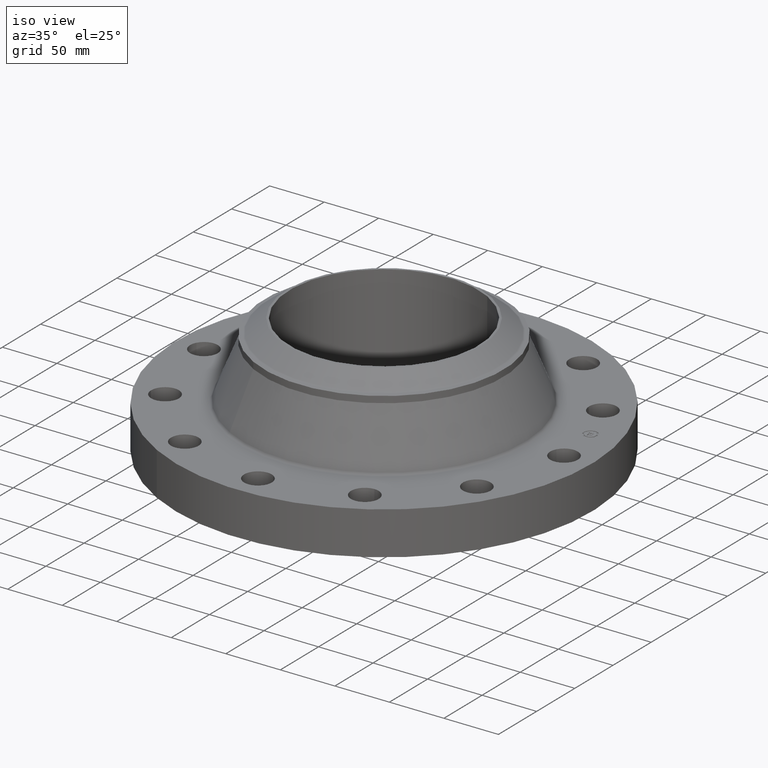
[diagram: clean part render]
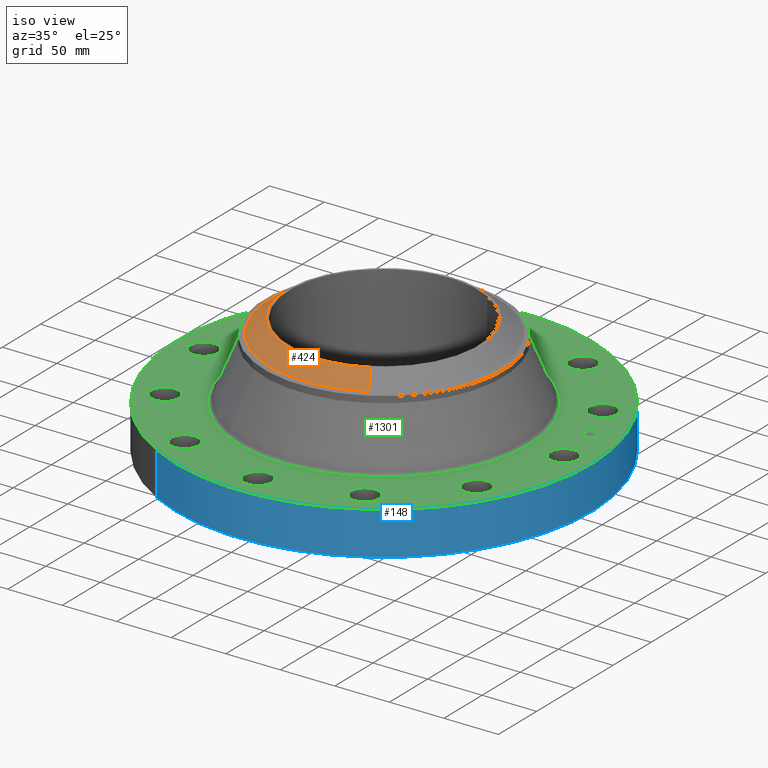
[diagram: same view with three faces highlighted in distinct colors, each labeled with its STEP entity id]
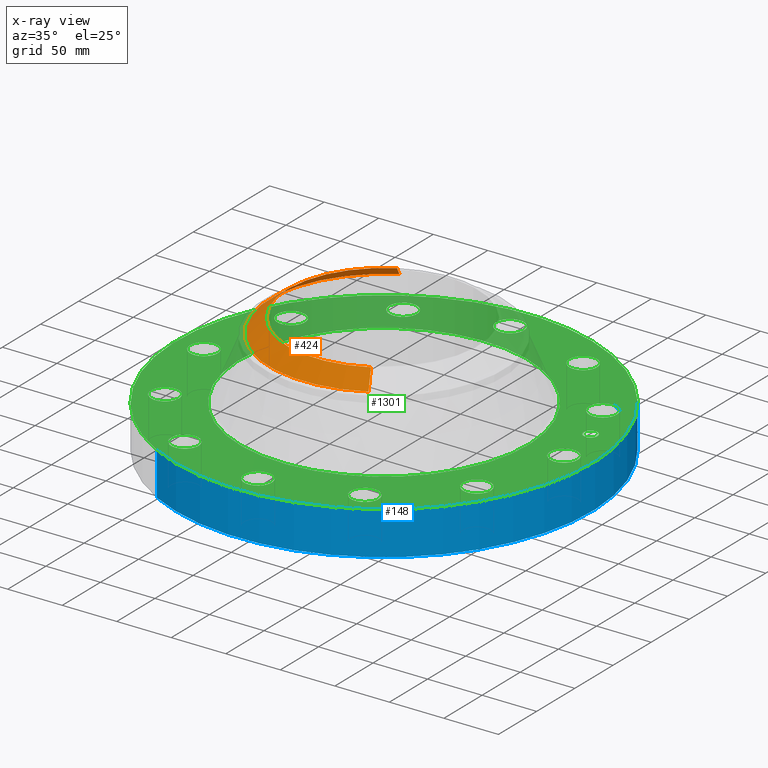
[diagram: x-ray of the same camera — body ghosted, the three highlighted faces saturated]
A machine part, iso view with three faces highlighted in distinct colors.
The next image is the same camera in x-ray (body ghosted, the three faces saturated) — at least one of them is partly hidden behind the body in this view.
Their STEP definitions:

[orange] entity #424 — the highlighted conical surface has half-angle 52.5 deg.
#343=AXIS2_PLACEMENT_3D('Cone Axis2P3D',#340,#341,#342) ;
#387=AXIS2_PLACEMENT_3D('Circle Axis2P3D',#385,#386,$) ;
#415=AXIS2_PLACEMENT_3D('Circle Axis2P3D',#413,#414,$) ;
#340=CARTESIAN_POINT('Axis2P3D Location',(0.,0.,4.32000000002)) ;
#349=CARTESIAN_POINT('Vertex',(1.67091313967,-3.05858598622,4.32000000002)) ;
#351=CARTESIAN_POINT('Vertex',(-1.67091313967,3.05858598622,4.32000000002)) ;
#354=CARTESIAN_POINT('Line Origine',(1.82585444222,-3.34220413812,4.07201437258)) ;
#358=CARTESIAN_POINT('Vertex',(1.98079574477,-3.62582229002,3.82402874515)) ;
#365=CARTESIAN_POINT('Vertex',(-1.98079574477,3.62582229002,3.82402874515)) ;
#368=CARTESIAN_POINT('Line Origine',(-1.82585444222,3.34220413812,4.07201437258)) ;
#385=CARTESIAN_POINT('Axis2P3D Location',(0.,0.,4.32000000002)) ;
#413=CARTESIAN_POINT('Axis2P3D Location',(0.,0.,3.82402874515)) ;
#341=DIRECTION('Axis2P3D Direction',(-0.,-0.,-0.0393700787402)) ;
#342=DIRECTION('Axis2P3D XDirection',(0.0188750212049,-0.0345504945626,0.)) ;
#355=DIRECTION('Vector Direction',(0.014974561121,-0.02741075027,-0.023966985394)) ;
#369=DIRECTION('Vector Direction',(-0.014974561121,0.02741075027,-0.023966985394)) ;
#386=DIRECTION('Axis2P3D Direction',(0.,0.,-0.0393700787402)) ;
#414=DIRECTION('Axis2P3D Direction',(0.,0.,-0.0393700787402)) ;
#356=VECTOR('Line Direction',#355,0.0393700787402) ;
#370=VECTOR('Line Direction',#369,0.0393700787402) ;
#419=ORIENTED_EDGE('',*,*,#389,.F.) ;
#420=ORIENTED_EDGE('',*,*,#372,.T.) ;
#421=ORIENTED_EDGE('',*,*,#417,.T.) ;
#422=ORIENTED_EDGE('',*,*,#360,.F.) ;
#424=ADVANCED_FACE('PartBody',(#423),#344,.T.) ;
#388=CIRCLE('generated circle',#387,3.48524015749) ;
#416=CIRCLE('generated circle',#415,4.13160248104) ;
#344=CONICAL_SURFACE('Cone',#343,3.48524015749,0.916297857297) ;
#360=EDGE_CURVE('',#350,#359,#357,.T.) ;
#372=EDGE_CURVE('',#352,#366,#371,.T.) ;
#389=EDGE_CURVE('',#352,#350,#388,.F.) ;
#417=EDGE_CURVE('',#366,#359,#416,.F.) ;
#418=EDGE_LOOP('',(#419,#420,#421,#422)) ;
#423=FACE_OUTER_BOUND('',#418,.T.) ;
#357=LINE('Line',#354,#356) ;
#371=LINE('Line',#368,#370) ;
#350=VERTEX_POINT('',#349) ;
#352=VERTEX_POINT('',#351) ;
#359=VERTEX_POINT('',#358) ;
#366=VERTEX_POINT('',#365) ;

[blue] entity #148 — the highlighted cylindrical surface (partial cylindrical patch) has radius 190.5 mm, axis along (0, 0, -1).
#95=AXIS2_PLACEMENT_3D('Cylinder Axis2P3D',#92,#93,#94) ;
#134=AXIS2_PLACEMENT_3D('Circle Axis2P3D',#132,#133,$) ;
#139=AXIS2_PLACEMENT_3D('Circle Axis2P3D',#137,#138,$) ;
#92=CARTESIAN_POINT('Axis2P3D Location',(0.,0.,2.16000000001)) ;
#101=CARTESIAN_POINT('Vertex',(-3.59569153955,-6.5818692142,8.39223703654E-016)) ;
#103=CARTESIAN_POINT('Vertex',(3.59569153955,6.5818692142,8.39223703654E-016)) ;
#106=CARTESIAN_POINT('Line Origine',(-3.59569153955,-6.5818692142,0.780000000003)) ;
#110=CARTESIAN_POINT('Vertex',(-3.59569153955,-6.5818692142,1.56000000001)) ;
#117=CARTESIAN_POINT('Vertex',(3.59569153955,6.5818692142,1.56000000001)) ;
#120=CARTESIAN_POINT('Line Origine',(3.59569153955,6.5818692142,0.780000000003)) ;
#132=CARTESIAN_POINT('Axis2P3D Location',(0.,0.,8.39223703654E-016)) ;
#137=CARTESIAN_POINT('Axis2P3D Location',(0.,0.,1.56000000001)) ;
#93=DIRECTION('Axis2P3D Direction',(0.,0.,-0.0393700787402)) ;
#94=DIRECTION('Axis2P3D XDirection',(0.0188750212049,0.0345504945626,0.)) ;
#107=DIRECTION('Vector Direction',(0.,0.,-0.0393700787402)) ;
#121=DIRECTION('Vector Direction',(0.,0.,-0.0393700787402)) ;
#133=DIRECTION('Axis2P3D Direction',(0.,0.,-0.0393700787402)) ;
#138=DIRECTION('Axis2P3D Direction',(0.,0.,-0.0393700787402)) ;
#108=VECTOR('Line Direction',#107,0.0393700787402) ;
#122=VECTOR('Line Direction',#121,0.0393700787402) ;
#143=ORIENTED_EDGE('',*,*,#136,.F.) ;
#144=ORIENTED_EDGE('',*,*,#124,.T.) ;
#145=ORIENTED_EDGE('',*,*,#141,.T.) ;
#146=ORIENTED_EDGE('',*,*,#112,.F.) ;
#148=ADVANCED_FACE('PartBody',(#147),#96,.T.) ;
#135=CIRCLE('generated circle',#134,7.50000000003) ;
#140=CIRCLE('generated circle',#139,7.50000000003) ;
#96=CYLINDRICAL_SURFACE('generated cylinder',#95,7.50000000003) ;
#112=EDGE_CURVE('',#102,#111,#109,.F.) ;
#124=EDGE_CURVE('',#104,#118,#123,.F.) ;
#136=EDGE_CURVE('',#104,#102,#135,.T.) ;
#141=EDGE_CURVE('',#118,#111,#140,.T.) ;
#142=EDGE_LOOP('',(#143,#144,#145,#146)) ;
#147=FACE_OUTER_BOUND('',#142,.T.) ;
#109=LINE('Line',#106,#108) ;
#123=LINE('Line',#120,#122) ;
#102=VERTEX_POINT('',#101) ;
#104=VERTEX_POINT('',#103) ;
#111=VERTEX_POINT('',#110) ;
#118=VERTEX_POINT('',#117) ;

[green] entity #1301 — the highlighted planar face has unit normal (0, 0, -1).
#65=AXIS2_PLACEMENT_3D('Circle Axis2P3D',#63,#64,$) ;
#82=AXIS2_PLACEMENT_3D('Circle Axis2P3D',#80,#81,$) ;
#115=AXIS2_PLACEMENT_3D('Circle Axis2P3D',#113,#114,$) ;
#139=AXIS2_PLACEMENT_3D('Circle Axis2P3D',#137,#138,$) ;
#156=AXIS2_PLACEMENT_3D('Circle Axis2P3D',#154,#155,$) ;
#191=AXIS2_PLACEMENT_3D('Circle Axis2P3D',#189,#190,$) ;
#770=AXIS2_PLACEMENT_3D('Circle Axis2P3D',#768,#769,$) ;
#782=AXIS2_PLACEMENT_3D('Circle Axis2P3D',#780,#781,$) ;
#813=AXIS2_PLACEMENT_3D('Circle Axis2P3D',#811,#812,$) ;
#825=AXIS2_PLACEMENT_3D('Circle Axis2P3D',#823,#824,$) ;
#856=AXIS2_PLACEMENT_3D('Circle Axis2P3D',#854,#855,$) ;
#868=AXIS2_PLACEMENT_3D('Circle Axis2P3D',#866,#867,$) ;
#899=AXIS2_PLACEMENT_3D('Circle Axis2P3D',#897,#898,$) ;
#911=AXIS2_PLACEMENT_3D('Circle Axis2P3D',#909,#910,$) ;
#942=AXIS2_PLACEMENT_3D('Circle Axis2P3D',#940,#941,$) ;
#954=AXIS2_PLACEMENT_3D('Circle Axis2P3D',#952,#953,$) ;
#985=AXIS2_PLACEMENT_3D('Circle Axis2P3D',#983,#984,$) ;
#997=AXIS2_PLACEMENT_3D('Circle Axis2P3D',#995,#996,$) ;
#1028=AXIS2_PLACEMENT_3D('Circle Axis2P3D',#1026,#1027,$) ;
#1040=AXIS2_PLACEMENT_3D('Circle Axis2P3D',#1038,#1039,$) ;
#1071=AXIS2_PLACEMENT_3D('Circle Axis2P3D',#1069,#1070,$) ;
#1083=AXIS2_PLACEMENT_3D('Circle Axis2P3D',#1081,#1082,$) ;
#1114=AXIS2_PLACEMENT_3D('Circle Axis2P3D',#1112,#1113,$) ;
#1126=AXIS2_PLACEMENT_3D('Circle Axis2P3D',#1124,#1125,$) ;
#1157=AXIS2_PLACEMENT_3D('Circle Axis2P3D',#1155,#1156,$) ;
#1169=AXIS2_PLACEMENT_3D('Circle Axis2P3D',#1167,#1168,$) ;
#1200=AXIS2_PLACEMENT_3D('Circle Axis2P3D',#1198,#1199,$) ;
#1212=AXIS2_PLACEMENT_3D('Circle Axis2P3D',#1210,#1211,$) ;
#1225=AXIS2_PLACEMENT_3D('Plane Axis2P3D',#1222,#1223,#1224) ;
#1285=AXIS2_PLACEMENT_3D('Circle Axis2P3D',#1283,#1284,$) ;
#1294=AXIS2_PLACEMENT_3D('Circle Axis2P3D',#1292,#1293,$) ;
#46=CARTESIAN_POINT('Vertex',(6.06120871908,0.239712769303,1.56000000001)) ;
#60=CARTESIAN_POINT('Vertex',(6.93879128097,-0.239712769303,1.56000000001)) ;
#63=CARTESIAN_POINT('Axis2P3D Location',(6.50000000003,0.,1.56000000001)) ;
#80=CARTESIAN_POINT('Axis2P3D Location',(6.50000000003,0.,1.56000000001)) ;
#110=CARTESIAN_POINT('Vertex',(-3.59569153955,-6.5818692142,1.56000000001)) ;
#113=CARTESIAN_POINT('Axis2P3D Location',(0.,0.,1.56000000001)) ;
#117=CARTESIAN_POINT('Vertex',(3.59569153955,6.5818692142,1.56000000001)) ;
#137=CARTESIAN_POINT('Axis2P3D Location',(0.,0.,1.56000000001)) ;
#154=CARTESIAN_POINT('Axis2P3D Location',(0.,0.,1.56000000001)) ;
#158=CARTESIAN_POINT('Vertex',(2.49569360614,4.5683365032,1.56000000001)) ;
#160=CARTESIAN_POINT('Vertex',(-2.49569360614,-4.5683365032,1.56000000001)) ;
#189=CARTESIAN_POINT('Axis2P3D Location',(0.,0.,1.56000000001)) ;
#758=CARTESIAN_POINT('Vertex',(-5.36901711301,2.82300701171,1.56000000001)) ;
#765=CARTESIAN_POINT('Vertex',(-5.88931313623,3.67699298831,1.56000000001)) ;
#768=CARTESIAN_POINT('Axis2P3D Location',(-5.62916512462,3.25000000001,1.56000000001)) ;
#780=CARTESIAN_POINT('Axis2P3D Location',(-5.62916512462,3.25000000001,1.56000000001)) ;
#801=CARTESIAN_POINT('Vertex',(3.23820170737,-5.12930434371,1.56000000001)) ;
#808=CARTESIAN_POINT('Vertex',(3.26179829266,-6.12902590553,1.56000000001)) ;
#811=CARTESIAN_POINT('Axis2P3D Location',(3.25000000001,-5.62916512462,1.56000000001)) ;
#823=CARTESIAN_POINT('Axis2P3D Location',(3.25000000001,-5.62916512462,1.56000000001)) ;
#844=CARTESIAN_POINT('Vertex',(-3.23820170737,5.12930434371,1.56000000001)) ;
#851=CARTESIAN_POINT('Vertex',(-3.26179829266,6.12902590553,1.56000000001)) ;
#854=CARTESIAN_POINT('Axis2P3D Location',(-3.25000000001,5.62916512462,1.56000000001)) ;
#866=CARTESIAN_POINT('Axis2P3D Location',(-3.25000000001,5.62916512462,1.56000000001)) ;
#887=CARTESIAN_POINT('Vertex',(0.239712769303,-6.06120871908,1.56000000001)) ;
#894=CARTESIAN_POINT('Vertex',(-0.239712769303,-6.93879128097,1.56000000001)) ;
#897=CARTESIAN_POINT('Axis2P3D Location',(-7.2095472848E-016,-6.50000000003,1.56000000001)) ;
#909=CARTESIAN_POINT('Axis2P3D Location',(-7.2095472848E-016,-6.50000000003,1.56000000001)) ;
#930=CARTESIAN_POINT('Vertex',(-0.239712769303,6.06120871908,1.56000000001)) ;
#937=CARTESIAN_POINT('Vertex',(0.239712769303,6.93879128097,1.56000000001)) ;
#940=CARTESIAN_POINT('Axis2P3D Location',(-1.19403062917E-015,6.50000000003,1.56000000001)) ;
#952=CARTESIAN_POINT('Axis2P3D Location',(-1.19403062917E-015,6.50000000003,1.56000000001)) ;
#973=CARTESIAN_POINT('Vertex',(-2.82300701171,-5.36901711301,1.56000000001)) ;
#980=CARTESIAN_POINT('Vertex',(-3.67699298831,-5.88931313623,1.56000000001)) ;
#983=CARTESIAN_POINT('Axis2P3D Location',(-3.25000000001,-5.62916512462,1.56000000001)) ;
#995=CARTESIAN_POINT('Axis2P3D Location',(-3.25000000001,-5.62916512462,1.56000000001)) ;
#1016=CARTESIAN_POINT('Vertex',(2.82300701171,5.36901711301,1.56000000001)) ;
#1023=CARTESIAN_POINT('Vertex',(3.67699298831,5.88931313623,1.56000000001)) ;
#1026=CARTESIAN_POINT('Axis2P3D Location',(3.25000000001,5.62916512462,1.56000000001)) ;
#1038=CARTESIAN_POINT('Axis2P3D Location',(3.25000000001,5.62916512462,1.56000000001)) ;
#1059=CARTESIAN_POINT('Vertex',(-5.12930434371,-3.23820170737,1.56000000001)) ;
#1066=CARTESIAN_POINT('Vertex',(-6.12902590553,-3.26179829266,1.56000000001)) ;
#1069=CARTESIAN_POINT('Axis2P3D Location',(-5.62916512462,-3.25000000001,1.56000000001)) ;
#1081=CARTESIAN_POINT('Axis2P3D Location',(-5.62916512462,-3.25000000001,1.56000000001)) ;
#1102=CARTESIAN_POINT('Vertex',(5.12930434371,3.23820170737,1.56000000001)) ;
#1109=CARTESIAN_POINT('Vertex',(6.12902590553,3.26179829266,1.56000000001)) ;
#1112=CARTESIAN_POINT('Axis2P3D Location',(5.62916512462,3.25000000001,1.56000000001)) ;
#1124=CARTESIAN_POINT('Axis2P3D Location',(5.62916512462,3.25000000001,1.56000000001)) ;
#1145=CARTESIAN_POINT('Vertex',(-6.06120871908,-0.239712769303,1.56000000001)) ;
#1152=CARTESIAN_POINT('Vertex',(-6.93879128097,0.239712769303,1.56000000001)) ;
#1155=CARTESIAN_POINT('Axis2P3D Location',(-6.50000000003,-7.96020419449E-016,1.56000000001)) ;
#1167=CARTESIAN_POINT('Axis2P3D Location',(-6.50000000003,-7.96020419449E-016,1.56000000001)) ;
#1188=CARTESIAN_POINT('Vertex',(5.36901711301,-2.82300701171,1.56000000001)) ;
#1195=CARTESIAN_POINT('Vertex',(5.88931313623,-3.67699298831,1.56000000001)) ;
#1198=CARTESIAN_POINT('Axis2P3D Location',(5.62916512462,-3.25000000001,1.56000000001)) ;
#1210=CARTESIAN_POINT('Axis2P3D Location',(5.62916512462,-3.25000000001,1.56000000001)) ;
#1222=CARTESIAN_POINT('Axis2P3D Location',(0.,7.50000000003,1.56000000001)) ;
#1283=CARTESIAN_POINT('Axis2P3D Location',(6.2785178709,1.68232379317,1.56000000001)) ;
#1287=CARTESIAN_POINT('Vertex',(6.21446015724,1.92139043518,1.56000000001)) ;
#1289=CARTESIAN_POINT('Vertex',(6.34257558457,1.44325715117,1.56000000001)) ;
#1292=CARTESIAN_POINT('Axis2P3D Location',(6.2785178709,1.68232379317,1.56000000001)) ;
#64=DIRECTION('Axis2P3D Direction',(0.,-0.,-0.0393700787402)) ;
#81=DIRECTION('Axis2P3D Direction',(0.,-0.,-0.0393700787402)) ;
#114=DIRECTION('Axis2P3D Direction',(0.,0.,-0.0393700787402)) ;
#138=DIRECTION('Axis2P3D Direction',(0.,0.,-0.0393700787402)) ;
#155=DIRECTION('Axis2P3D Direction',(0.,0.,-0.0393700787402)) ;
#190=DIRECTION('Axis2P3D Direction',(0.,0.,-0.0393700787402)) ;
#769=DIRECTION('Axis2P3D Direction',(0.,0.,-0.0393700787402)) ;
#781=DIRECTION('Axis2P3D Direction',(0.,0.,-0.0393700787402)) ;
#812=DIRECTION('Axis2P3D Direction',(0.,-0.,-0.0393700787402)) ;
#824=DIRECTION('Axis2P3D Direction',(0.,-0.,-0.0393700787402)) ;
#855=DIRECTION('Axis2P3D Direction',(0.,0.,-0.0393700787402)) ;
#867=DIRECTION('Axis2P3D Direction',(0.,0.,-0.0393700787402)) ;
#898=DIRECTION('Axis2P3D Direction',(0.,-0.,-0.0393700787402)) ;
#910=DIRECTION('Axis2P3D Direction',(0.,-0.,-0.0393700787402)) ;
#941=DIRECTION('Axis2P3D Direction',(0.,0.,-0.0393700787402)) ;
#953=DIRECTION('Axis2P3D Direction',(0.,0.,-0.0393700787402)) ;
#984=DIRECTION('Axis2P3D Direction',(-0.,0.,-0.0393700787402)) ;
#996=DIRECTION('Axis2P3D Direction',(-0.,0.,-0.0393700787402)) ;
#1027=DIRECTION('Axis2P3D Direction',(0.,0.,-0.0393700787402)) ;
#1039=DIRECTION('Axis2P3D Direction',(0.,0.,-0.0393700787402)) ;
#1070=DIRECTION('Axis2P3D Direction',(-0.,0.,-0.0393700787402)) ;
#1082=DIRECTION('Axis2P3D Direction',(-0.,0.,-0.0393700787402)) ;
#1113=DIRECTION('Axis2P3D Direction',(0.,0.,-0.0393700787402)) ;
#1125=DIRECTION('Axis2P3D Direction',(0.,0.,-0.0393700787402)) ;
#1156=DIRECTION('Axis2P3D Direction',(-0.,0.,-0.0393700787402)) ;
#1168=DIRECTION('Axis2P3D Direction',(-0.,0.,-0.0393700787402)) ;
#1199=DIRECTION('Axis2P3D Direction',(0.,-0.,-0.0393700787402)) ;
#1211=DIRECTION('Axis2P3D Direction',(0.,-0.,-0.0393700787402)) ;
#1223=DIRECTION('Axis2P3D Direction',(0.,0.,-0.0393700787402)) ;
#1224=DIRECTION('Axis2P3D XDirection',(0.0393700787402,0.,0.)) ;
#1284=DIRECTION('Axis2P3D Direction',(0.,0.,-0.0393700787402)) ;
#1293=DIRECTION('Axis2P3D Direction',(0.,0.,-0.0393700787402)) ;
#1228=ORIENTED_EDGE('',*,*,#141,.F.) ;
#1229=ORIENTED_EDGE('',*,*,#119,.F.) ;
#1232=ORIENTED_EDGE('',*,*,#67,.T.) ;
#1233=ORIENTED_EDGE('',*,*,#84,.T.) ;
#1236=ORIENTED_EDGE('',*,*,#193,.T.) ;
#1237=ORIENTED_EDGE('',*,*,#162,.T.) ;
#1240=ORIENTED_EDGE('',*,*,#1214,.T.) ;
#1241=ORIENTED_EDGE('',*,*,#1202,.T.) ;
#1244=ORIENTED_EDGE('',*,*,#827,.T.) ;
#1245=ORIENTED_EDGE('',*,*,#815,.T.) ;
#1248=ORIENTED_EDGE('',*,*,#913,.T.) ;
#1249=ORIENTED_EDGE('',*,*,#901,.T.) ;
#1252=ORIENTED_EDGE('',*,*,#999,.T.) ;
#1253=ORIENTED_EDGE('',*,*,#987,.T.) ;
#1256=ORIENTED_EDGE('',*,*,#1085,.T.) ;
#1257=ORIENTED_EDGE('',*,*,#1073,.T.) ;
#1260=ORIENTED_EDGE('',*,*,#1171,.T.) ;
#1261=ORIENTED_EDGE('',*,*,#1159,.T.) ;
#1264=ORIENTED_EDGE('',*,*,#784,.T.) ;
#1265=ORIENTED_EDGE('',*,*,#772,.T.) ;
#1268=ORIENTED_EDGE('',*,*,#870,.T.) ;
#1269=ORIENTED_EDGE('',*,*,#858,.T.) ;
#1272=ORIENTED_EDGE('',*,*,#956,.T.) ;
#1273=ORIENTED_EDGE('',*,*,#944,.T.) ;
#1276=ORIENTED_EDGE('',*,*,#1042,.T.) ;
#1277=ORIENTED_EDGE('',*,*,#1030,.T.) ;
#1280=ORIENTED_EDGE('',*,*,#1128,.T.) ;
#1281=ORIENTED_EDGE('',*,*,#1116,.T.) ;
#1298=ORIENTED_EDGE('',*,*,#1291,.T.) ;
#1299=ORIENTED_EDGE('',*,*,#1296,.T.) ;
#1234=FACE_BOUND('',#1231,.T.) ;
#1238=FACE_BOUND('',#1235,.T.) ;
#1242=FACE_BOUND('',#1239,.T.) ;
#1246=FACE_BOUND('',#1243,.T.) ;
#1250=FACE_BOUND('',#1247,.T.) ;
#1254=FACE_BOUND('',#1251,.T.) ;
#1258=FACE_BOUND('',#1255,.T.) ;
#1262=FACE_BOUND('',#1259,.T.) ;
#1266=FACE_BOUND('',#1263,.T.) ;
#1270=FACE_BOUND('',#1267,.T.) ;
#1274=FACE_BOUND('',#1271,.T.) ;
#1278=FACE_BOUND('',#1275,.T.) ;
#1282=FACE_BOUND('',#1279,.T.) ;
#1300=FACE_BOUND('',#1297,.T.) ;
#1301=ADVANCED_FACE('PartBody',(#1230,#1234,#1238,#1242,#1246,#1250,#1254,#1258,#1262,#1266,#1270,#1274,#1278,#1282,#1300),#1226,.F.) ;
#66=CIRCLE('generated circle',#65,0.500000000002) ;
#83=CIRCLE('generated circle',#82,0.500000000002) ;
#116=CIRCLE('generated circle',#115,7.50000000003) ;
#140=CIRCLE('generated circle',#139,7.50000000003) ;
#157=CIRCLE('generated circle',#156,5.20559170337) ;
#192=CIRCLE('generated circle',#191,5.20559170337) ;
#771=CIRCLE('generated circle',#770,0.500000000002) ;
#783=CIRCLE('generated circle',#782,0.500000000002) ;
#814=CIRCLE('generated circle',#813,0.500000000002) ;
#826=CIRCLE('generated circle',#825,0.500000000002) ;
#857=CIRCLE('generated circle',#856,0.500000000002) ;
#869=CIRCLE('generated circle',#868,0.500000000002) ;
#900=CIRCLE('generated circle',#899,0.500000000002) ;
#912=CIRCLE('generated circle',#911,0.500000000002) ;
#943=CIRCLE('generated circle',#942,0.500000000002) ;
#955=CIRCLE('generated circle',#954,0.500000000002) ;
#986=CIRCLE('generated circle',#985,0.500000000002) ;
#998=CIRCLE('generated circle',#997,0.500000000002) ;
#1029=CIRCLE('generated circle',#1028,0.500000000002) ;
#1041=CIRCLE('generated circle',#1040,0.500000000002) ;
#1072=CIRCLE('generated circle',#1071,0.500000000002) ;
#1084=CIRCLE('generated circle',#1083,0.500000000002) ;
#1115=CIRCLE('generated circle',#1114,0.500000000002) ;
#1127=CIRCLE('generated circle',#1126,0.500000000002) ;
#1158=CIRCLE('generated circle',#1157,0.500000000002) ;
#1170=CIRCLE('generated circle',#1169,0.500000000002) ;
#1201=CIRCLE('generated circle',#1200,0.500000000002) ;
#1213=CIRCLE('generated circle',#1212,0.500000000002) ;
#1286=CIRCLE('generated circle',#1285,0.247500000001) ;
#1295=CIRCLE('generated circle',#1294,0.247500000001) ;
#67=EDGE_CURVE('',#47,#61,#66,.T.) ;
#84=EDGE_CURVE('',#61,#47,#83,.T.) ;
#119=EDGE_CURVE('',#111,#118,#116,.T.) ;
#141=EDGE_CURVE('',#118,#111,#140,.T.) ;
#162=EDGE_CURVE('',#159,#161,#157,.T.) ;
#193=EDGE_CURVE('',#161,#159,#192,.T.) ;
#772=EDGE_CURVE('',#759,#766,#771,.T.) ;
#784=EDGE_CURVE('',#766,#759,#783,.T.) ;
#815=EDGE_CURVE('',#802,#809,#814,.T.) ;
#827=EDGE_CURVE('',#809,#802,#826,.T.) ;
#858=EDGE_CURVE('',#845,#852,#857,.T.) ;
#870=EDGE_CURVE('',#852,#845,#869,.T.) ;
#901=EDGE_CURVE('',#888,#895,#900,.T.) ;
#913=EDGE_CURVE('',#895,#888,#912,.T.) ;
#944=EDGE_CURVE('',#931,#938,#943,.T.) ;
#956=EDGE_CURVE('',#938,#931,#955,.T.) ;
#987=EDGE_CURVE('',#974,#981,#986,.T.) ;
#999=EDGE_CURVE('',#981,#974,#998,.T.) ;
#1030=EDGE_CURVE('',#1017,#1024,#1029,.T.) ;
#1042=EDGE_CURVE('',#1024,#1017,#1041,.T.) ;
#1073=EDGE_CURVE('',#1060,#1067,#1072,.T.) ;
#1085=EDGE_CURVE('',#1067,#1060,#1084,.T.) ;
#1116=EDGE_CURVE('',#1103,#1110,#1115,.T.) ;
#1128=EDGE_CURVE('',#1110,#1103,#1127,.T.) ;
#1159=EDGE_CURVE('',#1146,#1153,#1158,.T.) ;
#1171=EDGE_CURVE('',#1153,#1146,#1170,.T.) ;
#1202=EDGE_CURVE('',#1189,#1196,#1201,.T.) ;
#1214=EDGE_CURVE('',#1196,#1189,#1213,.T.) ;
#1291=EDGE_CURVE('',#1288,#1290,#1286,.T.) ;
#1296=EDGE_CURVE('',#1290,#1288,#1295,.T.) ;
#1227=EDGE_LOOP('',(#1228,#1229)) ;
#1231=EDGE_LOOP('',(#1232,#1233)) ;
#1235=EDGE_LOOP('',(#1236,#1237)) ;
#1239=EDGE_LOOP('',(#1240,#1241)) ;
#1243=EDGE_LOOP('',(#1244,#1245)) ;
#1247=EDGE_LOOP('',(#1248,#1249)) ;
#1251=EDGE_LOOP('',(#1252,#1253)) ;
#1255=EDGE_LOOP('',(#1256,#1257)) ;
#1259=EDGE_LOOP('',(#1260,#1261)) ;
#1263=EDGE_LOOP('',(#1264,#1265)) ;
#1267=EDGE_LOOP('',(#1268,#1269)) ;
#1271=EDGE_LOOP('',(#1272,#1273)) ;
#1275=EDGE_LOOP('',(#1276,#1277)) ;
#1279=EDGE_LOOP('',(#1280,#1281)) ;
#1297=EDGE_LOOP('',(#1298,#1299)) ;
#1230=FACE_OUTER_BOUND('',#1227,.T.) ;
#1226=PLANE('',#1225) ;
#47=VERTEX_POINT('',#46) ;
#61=VERTEX_POINT('',#60) ;
#111=VERTEX_POINT('',#110) ;
#118=VERTEX_POINT('',#117) ;
#159=VERTEX_POINT('',#158) ;
#161=VERTEX_POINT('',#160) ;
#759=VERTEX_POINT('',#758) ;
#766=VERTEX_POINT('',#765) ;
#802=VERTEX_POINT('',#801) ;
#809=VERTEX_POINT('',#808) ;
#845=VERTEX_POINT('',#844) ;
#852=VERTEX_POINT('',#851) ;
#888=VERTEX_POINT('',#887) ;
#895=VERTEX_POINT('',#894) ;
#931=VERTEX_POINT('',#930) ;
#938=VERTEX_POINT('',#937) ;
#974=VERTEX_POINT('',#973) ;
#981=VERTEX_POINT('',#980) ;
#1017=VERTEX_POINT('',#1016) ;
#1024=VERTEX_POINT('',#1023) ;
#1060=VERTEX_POINT('',#1059) ;
#1067=VERTEX_POINT('',#1066) ;
#1103=VERTEX_POINT('',#1102) ;
#1110=VERTEX_POINT('',#1109) ;
#1146=VERTEX_POINT('',#1145) ;
#1153=VERTEX_POINT('',#1152) ;
#1189=VERTEX_POINT('',#1188) ;
#1196=VERTEX_POINT('',#1195) ;
#1288=VERTEX_POINT('',#1287) ;
#1290=VERTEX_POINT('',#1289) ;